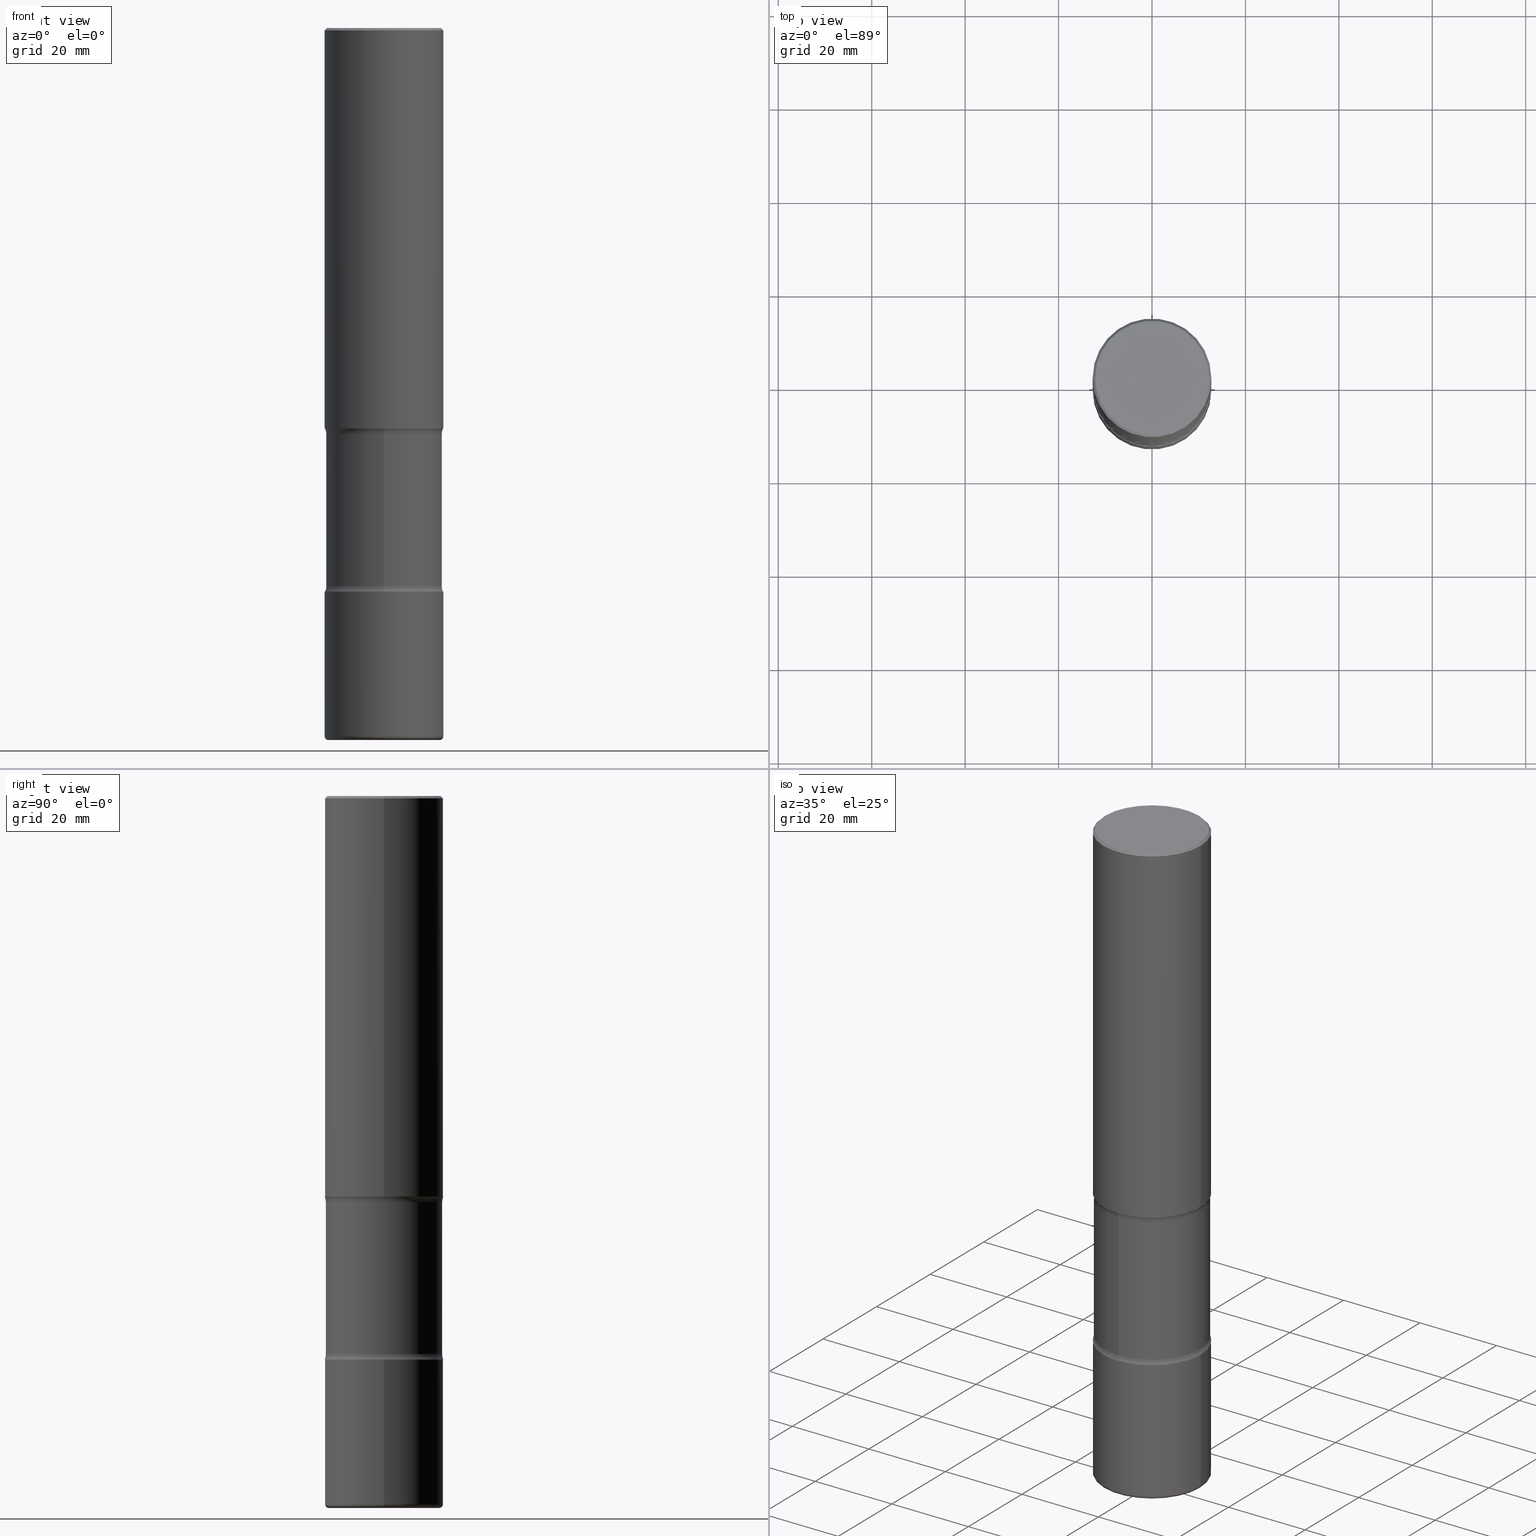
[diagram: canonical four-view strip — front | top / right | iso, engineering-drawing reading convention]
A machine part, canonical four-view strip (front | top / right | iso — engineering-drawing reading convention). The complete STEP part file that produces these views, byte-faithful:
ISO-10303-21;
HEADER;
FILE_DESCRIPTION (( 'STEP AP203' ),
    '1' );
FILE_NAME ('33563.STEP',
    '2024-03-01T22:50:40',
    ( '' ),
    ( '' ),
    'SwSTEP 2.0',
    'SolidWorks 2023',
    '' );
FILE_SCHEMA (( 'CONFIG_CONTROL_DESIGN' ));
ENDSEC;

DATA;
#1 = EDGE_LOOP ( 'NONE', ( #382, #125 ) ) ;
#2 = PERSON ( 'UNSPECIFIED', 'UNSPECIFIED', 'UNSPECIFIED', ('UNSPECIFIED'), ('UNSPECIFIED'), ('UNSPECIFIED') ) ;
#3 = ORIENTED_EDGE ( 'NONE', *, *, #550, .F. ) ;
#4 = DIRECTION ( 'NONE',  ( 1.000000000000000000, -6.982962677686267499E-15, 0.000000000000000000 ) ) ;
#5 = AXIS2_PLACEMENT_3D ( 'NONE', #258, #65, #360 ) ;
#6 = AXIS2_PLACEMENT_3D ( 'NONE', #307, #271, #533 ) ;
#7 = DIRECTION ( 'NONE',  ( 2.598079946832093802E-29, -3.272933499350004525E-15, -1.000000000000000000 ) ) ;
#8 = PERSON_AND_ORGANIZATION_ROLE ( 'creator' ) ;
#9 = EDGE_CURVE ( 'NONE', #421, #285, #500, .T. ) ;
#10 = CARTESIAN_POINT ( 'NONE',  ( 4.890937612370273159E-31, -6.982962677686291609E-17, -0.02000000000000000042 ) ) ;
#11 = DIRECTION ( 'NONE',  ( 1.000000000000000000, -6.982962677686266711E-15, 4.876036955247123238E-29 ) ) ;
#12 = CALENDAR_DATE ( 2024, 1, 3 ) ;
#13 = DIRECTION ( 'NONE',  ( -2.445468806185136877E-29, 3.491481338843145188E-15, 1.000000000000000000 ) ) ;
#14 = CARTESIAN_POINT ( 'NONE',  ( -0.5000000000000005551, 3.421651712066274396E-15, -0.02000000000000000042 ) ) ;
#15 = SECURITY_CLASSIFICATION_LEVEL ( 'unclassified' ) ;
#16 = ORIENTED_EDGE ( 'NONE', *, *, #188, .F. ) ;
#17 = DIRECTION ( 'NONE',  ( 6.982962677686266711E-15, 1.000000000000000000, -3.345119992241953553E-15 ) ) ;
#18 = CARTESIAN_POINT ( 'NONE',  ( 0.4700000000000005840, -2.412613605140612911E-14, -5.969999999999999751 ) ) ;
#19 = DATE_AND_TIME ( #415, #79 ) ;
#20 = CARTESIAN_POINT ( 'NONE',  ( -3.395946508896794322E-15, -0.4900000000000163669, -4.701010205144333653 ) ) ;
#21 = DIRECTION ( 'NONE',  ( 6.982962677686265922E-15, 1.000000000000000000, -3.272933499350004525E-15 ) ) ;
#22 = PERSON_AND_ORGANIZATION ( #2, #74 ) ;
#23 = DIRECTION ( 'NONE',  ( 2.598079946832093802E-29, -3.272933499350004525E-15, -1.000000000000000000 ) ) ;
#24 = DIRECTION ( 'NONE',  ( -2.445468806185136877E-29, 3.491481338843145188E-15, 1.000000000000000000 ) ) ;
#25 = TOROIDAL_SURFACE ( 'NONE', #94, 0.4700000000000005840, 0.03000000000000029379 ) ;
#26 = CARTESIAN_POINT ( 'NONE',  ( -0.4700000000000002509, -1.745038354453973469E-14, -6.000000000000000888 ) ) ;
#27 = AXIS2_PLACEMENT_3D ( 'NONE', #69, #234, #374 ) ;
#28 = ADVANCED_FACE ( 'NONE', ( #301 ), #482, .F. ) ;
#29 = CARTESIAN_POINT ( 'NONE',  ( -4.219206268629376327E-15, -0.6150000000000164224, -4.701010205144333653 ) ) ;
#30 = CARTESIAN_POINT ( 'NONE',  ( 1.148869742576547963E-28, -1.642419601879555421E-14, -4.701010205144335430 ) ) ;
#31 = ORIENTED_EDGE ( 'NONE', *, *, #350, .T. ) ;
#32 = ORIENTED_EDGE ( 'NONE', *, *, #156, .T. ) ;
#33 = PRODUCT_RELATED_PRODUCT_CATEGORY ( 'detail', '', ( #486 ) ) ;
#34 = CIRCLE ( 'NONE', #189, 0.4800000000000005929 ) ;
#35 = AXIS2_PLACEMENT_3D ( 'NONE', #446, #308, #487 ) ;
#36 = EDGE_CURVE ( 'NONE', #287, #381, #34, .T. ) ;
#37 = ORIENTED_EDGE ( 'NONE', *, *, #354, .T. ) ;
#38 = DIRECTION ( 'NONE',  ( 2.598079946832093802E-29, -3.272933499350004525E-15, -1.000000000000000000 ) ) ;
#39 = ORIENTED_EDGE ( 'NONE', *, *, #209, .T. ) ;
#40 = CIRCLE ( 'NONE', #361, 0.5000000000000006661 ) ;
#41 = VECTOR ( 'NONE', #252, 39.37007874015748143 ) ;
#42 = ORIENTED_EDGE ( 'NONE', *, *, #384, .F. ) ;
#43 =( CONVERSION_BASED_UNIT ( 'INCH', #442 ) LENGTH_UNIT ( ) NAMED_UNIT ( #548 ) );
#44 = UNCERTAINTY_MEASURE_WITH_UNIT (LENGTH_MEASURE( 1.000000000000000082E-05 ), #43, 'distance_accuracy_value', 'NONE');
#45 = ORIENTED_EDGE ( 'NONE', *, *, #290, .F. ) ;
#46 = CARTESIAN_POINT ( 'NONE',  ( 1.459944877292526494E-28, -2.084414359289357934E-14, -5.969999999999999751 ) ) ;
#47 = PERSON_AND_ORGANIZATION_ROLE ( 'creator' ) ;
#48 = AXIS2_PLACEMENT_3D ( 'NONE', #251, #246, #435 ) ;
#49 = ORIENTED_EDGE ( 'NONE', *, *, #354, .F. ) ;
#50 = CIRCLE ( 'NONE', #245, 0.03000000000000029379 ) ;
#51 = DIRECTION ( 'NONE',  ( 2.598079946832093802E-29, -3.272933499350004525E-15, -1.000000000000000000 ) ) ;
#52 = FACE_OUTER_BOUND ( 'NONE', #280, .T. ) ;
#53 = PERSON_AND_ORGANIZATION_ROLE ( 'design_supplier' ) ;
#54 = EDGE_CURVE ( 'NONE', #552, #421, #176, .T. ) ;
#55 = DIRECTION ( 'NONE',  ( 6.982962677686265922E-15, 1.000000000000000000, -3.278217592397109946E-15 ) ) ;
#56 = FACE_OUTER_BOUND ( 'NONE', #429, .T. ) ;
#57 = DIRECTION ( 'NONE',  ( -2.445468806185136597E-29, 3.491481338843145583E-15, 1.000000000000000000 ) ) ;
#58 = CARTESIAN_POINT ( 'NONE',  ( 1.459944877292526494E-28, -2.084414359289357934E-14, -5.969999999999999751 ) ) ;
#59 = DATE_TIME_ROLE ( 'creation_date' ) ;
#60 = ORIENTED_EDGE ( 'NONE', *, *, #9, .T. ) ;
#61 = CARTESIAN_POINT ( 'NONE',  ( 3.491481338843219736E-15, 0.4999999999999887867, -3.375000000000002220 ) ) ;
#62 = EDGE_CURVE ( 'NONE', #296, #343, #106, .T. ) ;
#63 = CLOSED_SHELL ( 'NONE', ( #480, #139, #328, #28, #430, #183 ) ) ;
#64 = AXIS2_PLACEMENT_3D ( 'NONE', #46, #211, #169 ) ;
#65 = DIRECTION ( 'NONE',  ( 2.598079946832093802E-29, -3.272933499350004525E-15, -1.000000000000000000 ) ) ;
#66 =( GEOMETRIC_REPRESENTATION_CONTEXT ( 3 ) GLOBAL_UNCERTAINTY_ASSIGNED_CONTEXT ( ( #44 ) ) GLOBAL_UNIT_ASSIGNED_CONTEXT ( ( #43, #261, #243 ) ) REPRESENTATION_CONTEXT ( 'NONE', 'WORKASPACE' ) );
#67 = CARTESIAN_POINT ( 'NONE',  ( -0.5000000000000006661, 3.552713678800505663E-15, -2.459467545127455974E-29 ) ) ;
#68 = FACE_OUTER_BOUND ( 'NONE', #152, .T. ) ;
#69 = CARTESIAN_POINT ( 'NONE',  ( 1.467281283711081958E-28, -2.094888803305887271E-14, -6.000000000000000888 ) ) ;
#70 = EDGE_CURVE ( 'NONE', #166, #256, #347, .T. ) ;
#71 = ORIENTED_EDGE ( 'NONE', *, *, #9, .F. ) ;
#72 = CYLINDRICAL_SURFACE ( 'NONE', #515, 0.4900000000000001021 ) ;
#73 = CIRCLE ( 'NONE', #5, 0.4899999999999999911 ) ;
#74 = ORGANIZATION ( 'UNSPECIFIED', 'UNSPECIFIED', '' ) ;
#75 = EDGE_LOOP ( 'NONE', ( #512, #465 ) ) ;
#76 = APPROVAL ( #358, 'UNSPECIFIED' ) ;
#77 = EDGE_CURVE ( 'NONE', #170, #231, #509, .T. ) ;
#78 = EDGE_LOOP ( 'NONE', ( #31, #108, #120, #355 ) ) ;
#79 = LOCAL_TIME ( 17, 50, 40.00000000000000000, #304 ) ;
#80 = ORIENTED_EDGE ( 'NONE', *, *, #342, .T. ) ;
#81 = DIRECTION ( 'NONE',  ( -2.445468806185136877E-29, 3.491481338843145188E-15, 1.000000000000000000 ) ) ;
#82 = ORIENTED_EDGE ( 'NONE', *, *, #550, .T. ) ;
#83 = ADVANCED_FACE ( 'NONE', ( #52 ), #454, .T. ) ;
#84 = ORIENTED_EDGE ( 'NONE', *, *, #521, .T. ) ;
#85 = TOROIDAL_SURFACE ( 'NONE', #205, 0.6150000000000001021, 0.1250000000000000278 ) ;
#86 =( LENGTH_UNIT ( ) NAMED_UNIT ( * ) SI_UNIT ( $, .METRE. ) );
#87 = DIRECTION ( 'NONE',  ( -2.445468806185136597E-29, 3.491481338843145583E-15, 1.000000000000000000 ) ) ;
#88 = DIRECTION ( 'NONE',  ( -2.445468806185136597E-29, 3.491481338843145583E-15, 1.000000000000000000 ) ) ;
#89 = PERSON_AND_ORGANIZATION ( #2, #74 ) ;
#90 = CARTESIAN_POINT ( 'NONE',  ( 8.043616902485270068E-29, -1.208425279789868613E-14, -3.375000000000000444 ) ) ;
#91 = ADVANCED_FACE ( 'NONE', ( #175 ), #216, .F. ) ;
#92 = DIRECTION ( 'NONE',  ( 2.598079946832093241E-29, -3.272933499350004525E-15, -1.000000000000000000 ) ) ;
#93 = CALENDAR_DATE ( 2024, 1, 3 ) ;
#94 = AXIS2_PLACEMENT_3D ( 'NONE', #58, #414, #483 ) ;
#95 = AXIS2_PLACEMENT_3D ( 'NONE', #269, #179, #142 ) ;
#96 = CARTESIAN_POINT ( 'NONE',  ( -0.4800000000000005929, 3.386736898677843141E-15, 1.280553747027767124E-17 ) ) ;
#97 = CARTESIAN_POINT ( 'NONE',  ( 8.182496310207079794E-29, -1.222798127249435385E-14, -3.423989794855665902 ) ) ;
#98 = COORDINATED_UNIVERSAL_TIME_OFFSET ( 5, 0, .BEHIND. ) ;
#99 = FACE_OUTER_BOUND ( 'NONE', #460, .T. ) ;
#100 = DIRECTION ( 'NONE',  ( 2.445468806185136597E-29, -3.491481338843145583E-15, -1.000000000000000000 ) ) ;
#101 = EDGE_LOOP ( 'NONE', ( #513, #478, #37, #16 ) ) ;
#102 = CARTESIAN_POINT ( 'NONE',  ( -3.430248998885690051E-15, -0.5000000000000129896, -3.374999999999998668 ) ) ;
#103 = LINE ( 'NONE', #14, #203 ) ;
#104 = COORDINATED_UNIVERSAL_TIME_OFFSET ( 5, 0, .BEHIND. ) ;
#105 = CARTESIAN_POINT ( 'NONE',  ( 8.253457220874837135E-29, -1.178374951859561767E-14, -3.375000000000000444 ) ) ;
#106 = CIRCLE ( 'NONE', #114, 0.5000000000000006661 ) ;
#107 = DIRECTION ( 'NONE',  ( -1.000000000000000000, 6.982962677686266711E-15, 0.000000000000000000 ) ) ;
#108 = ORIENTED_EDGE ( 'NONE', *, *, #283, .T. ) ;
#109 = ORIENTED_EDGE ( 'NONE', *, *, #255, .F. ) ;
#110 = APPROVAL ( #279, 'UNSPECIFIED' ) ;
#111 = DIRECTION ( 'NONE',  ( 6.982962677686265922E-15, 1.000000000000000000, -3.278217592397109946E-15 ) ) ;
#112 = ORIENTED_EDGE ( 'NONE', *, *, #255, .T. ) ;
#113 = CARTESIAN_POINT ( 'NONE',  ( 0.5000000000000007772, -2.433562493173672216E-14, -5.969999999999999751 ) ) ;
#114 = AXIS2_PLACEMENT_3D ( 'NONE', #336, #87, #443 ) ;
#115 = AXIS2_PLACEMENT_3D ( 'NONE', #90, #449, #55 ) ;
#116 = VERTEX_POINT ( 'NONE', #357 ) ;
#117 = ADVANCED_FACE ( 'NONE', ( #303 ), #253, .F. ) ;
#118 = CARTESIAN_POINT ( 'NONE',  ( 1.486357676291951651E-28, -2.067570323369244855E-14, -6.000000000000000888 ) ) ;
#119 = APPLICATION_CONTEXT ( 'configuration controlled 3d designs of mechanical parts and assemblies' ) ;
#120 = ORIENTED_EDGE ( 'NONE', *, *, #62, .F. ) ;
#121 = CARTESIAN_POINT ( 'NONE',  ( 4.890937612370273159E-31, -6.982962677686291609E-17, -0.02000000000000000042 ) ) ;
#122 = AXIS2_PLACEMENT_3D ( 'NONE', #18, #489, #524 ) ;
#123 = ADVANCED_FACE ( 'NONE', ( #319 ), #25, .T. ) ;
#124 = ORIENTED_EDGE ( 'NONE', *, *, #366, .T. ) ;
#125 = ORIENTED_EDGE ( 'NONE', *, *, #54, .T. ) ;
#126 = ORIENTED_EDGE ( 'NONE', *, *, #209, .F. ) ;
#127 = DIRECTION ( 'NONE',  ( -6.982962677686265133E-15, -1.000000000000000000, 0.000000000000000000 ) ) ;
#128 = ADVANCED_BREP_SHAPE_REPRESENTATION ( '33563', ( #344, #159, #365, #6 ), #66 ) ;
#129 = AXIS2_PLACEMENT_3D ( 'NONE', #412, #51, #17 ) ;
#130 = EDGE_CURVE ( 'NONE', #381, #287, #424, .T. ) ;
#131 = DIRECTION ( 'NONE',  ( 1.000000000000000000, -6.982962677686267499E-15, 0.000000000000000000 ) ) ;
#132 = CARTESIAN_POINT ( 'NONE',  ( 8.253457220874837135E-29, -1.178374951859561767E-14, -3.375000000000000444 ) ) ;
#133 = DIRECTION ( 'NONE',  ( 1.000000000000000000, -6.982962677686265133E-15, 0.000000000000000000 ) ) ;
#134 = CARTESIAN_POINT ( 'NONE',  ( 4.890937612370273159E-31, -6.982962677686291609E-17, -0.02000000000000000042 ) ) ;
#135 = APPROVAL_STATUS ( 'not_yet_approved' ) ;
#136 = AXIS2_PLACEMENT_3D ( 'NONE', #134, #100, #224 ) ;
#137 = CONICAL_SURFACE ( 'NONE', #266, 0.5000000000000005551, 0.7853981633974460586 ) ;
#138 = DIRECTION ( 'NONE',  ( 2.598079946832093802E-29, -3.272933499350004525E-15, -1.000000000000000000 ) ) ;
#139 = ADVANCED_FACE ( 'NONE', ( #316 ), #237, .T. ) ;
#140 = DIRECTION ( 'NONE',  ( -2.445468806185136597E-29, 3.491481338843145583E-15, 1.000000000000000000 ) ) ;
#141 = SHAPE_DEFINITION_REPRESENTATION ( #494, #128 ) ;
#142 = DIRECTION ( 'NONE',  ( 1.000000000000000000, -6.982962677686267499E-15, 0.000000000000000000 ) ) ;
#143 = DIRECTION ( 'NONE',  ( 1.000000000000000000, -6.982962677686265133E-15, 0.000000000000000000 ) ) ;
#144 = COORDINATED_UNIVERSAL_TIME_OFFSET ( 5, 0, .BEHIND. ) ;
#145 = PLANE ( 'NONE',  #197 ) ;
#146 = PLANE ( 'NONE',  #27 ) ;
#147 = ORIENTED_EDGE ( 'NONE', *, *, #384, .T. ) ;
#148 = AXIS2_PLACEMENT_3D ( 'NONE', #341, #250, #436 ) ;
#149 = AXIS2_PLACEMENT_3D ( 'NONE', #370, #508, #543 ) ;
#150 = PLANE ( 'NONE',  #149 ) ;
#151 = CARTESIAN_POINT ( 'NONE',  ( 0.000000000000000000, 0.000000000000000000, 0.000000000000000000 ) ) ;
#152 = EDGE_LOOP ( 'NONE', ( #192, #124, #276, #109 ) ) ;
#153 = DIRECTION ( 'NONE',  ( -1.000000000000000000, 7.105427357600986081E-15, 0.000000000000000000 ) ) ;
#154 = ORIENTED_EDGE ( 'NONE', *, *, #452, .T. ) ;
#155 = CIRCLE ( 'NONE', #531, 0.5000000000000005551 ) ;
#156 = EDGE_CURVE ( 'NONE', #381, #166, #103, .T. ) ;
#157 = CARTESIAN_POINT ( 'NONE',  ( 1.161597682937940108E-28, -1.658453635950494339E-14, -4.750000000000000000 ) ) ;
#158 = ADVANCED_FACE ( 'NONE', ( #408 ), #388, .F. ) ;
#159 = MANIFOLD_SOLID_BREP ( 'Body-Move/Copy2[2]', #63 ) ;
#160 = AXIS2_PLACEMENT_3D ( 'NONE', #398, #523, #11 ) ;
#161 = EDGE_LOOP ( 'NONE', ( #416, #154, #511, #126 ) ) ;
#162 = CIRCLE ( 'NONE', #64, 0.5000000000000006661 ) ;
#163 = ORIENTED_EDGE ( 'NONE', *, *, #130, .F. ) ;
#164 = DIRECTION ( 'NONE',  ( 6.860497997771532351E-15, 1.000000000000000000, 0.000000000000000000 ) ) ;
#165 = EDGE_CURVE ( 'NONE', #473, #296, #438, .T. ) ;
#166 = VERTEX_POINT ( 'NONE', #458 ) ;
#167 = CARTESIAN_POINT ( 'NONE',  ( 8.170896306099193759E-29, -1.224459313860807689E-14, -3.423989794855665902 ) ) ;
#168 = AXIS2_PLACEMENT_3D ( 'NONE', #463, #202, #164 ) ;
#169 = DIRECTION ( 'NONE',  ( 1.000000000000000000, -6.982962677686269077E-15, 0.000000000000000000 ) ) ;
#170 = VERTEX_POINT ( 'NONE', #180 ) ;
#171 = CYLINDRICAL_SURFACE ( 'NONE', #302, 0.5000000000000006661 ) ;
#172 = CALENDAR_DATE ( 2024, 1, 3 ) ;
#173 = VERTEX_POINT ( 'NONE', #367 ) ;
#174 = LINE ( 'NONE', #215, #425 ) ;
#175 = FACE_OUTER_BOUND ( 'NONE', #1, .T. ) ;
#176 = CIRCLE ( 'NONE', #212, 0.5000000000000006661 ) ;
#177 = ORIENTED_EDGE ( 'NONE', *, *, #156, .F. ) ;
#178 = AXIS2_PLACEMENT_3D ( 'NONE', #30, #426, #327 ) ;
#179 = DIRECTION ( 'NONE',  ( -2.445468806185136597E-29, 3.491481338843145583E-15, 1.000000000000000000 ) ) ;
#180 = CARTESIAN_POINT ( 'NONE',  ( -3.395946508896831399E-15, -0.4900000000000125366, -3.423989794855664126 ) ) ;
#181 = PERSON_AND_ORGANIZATION ( #2, #74 ) ;
#182 = CARTESIAN_POINT ( 'NONE',  ( 4.294522046777136226E-15, 0.6149999999999878897, -3.423989794855668123 ) ) ;
#183 = ADVANCED_FACE ( 'NONE', ( #536 ), #171, .T. ) ;
#184 = FACE_OUTER_BOUND ( 'NONE', #491, .T. ) ;
#185 = APPROVAL_ROLE ( '' ) ;
#186 = CARTESIAN_POINT ( 'NONE',  ( 8.253457220874837135E-29, -1.178374951859561767E-14, -3.375000000000000444 ) ) ;
#187 = FACE_OUTER_BOUND ( 'NONE', #363, .T. ) ;
#188 = EDGE_CURVE ( 'NONE', #331, #285, #73, .T. ) ;
#189 = AXIS2_PLACEMENT_3D ( 'NONE', #201, #556, #210 ) ;
#190 = CIRCLE ( 'NONE', #95, 0.4700000000000002509 ) ;
#191 = DIRECTION ( 'NONE',  ( 2.598079946832093802E-29, -3.272933499350004525E-15, -1.000000000000000000 ) ) ;
#192 = ORIENTED_EDGE ( 'NONE', *, *, #62, .T. ) ;
#193 = CARTESIAN_POINT ( 'NONE',  ( 0.5000000000000005551, -3.500078625662632235E-15, -0.02000000000000000042 ) ) ;
#194 = ORIENTED_EDGE ( 'NONE', *, *, #275, .F. ) ;
#195 = EDGE_CURVE ( 'NONE', #222, #242, #439, .T. ) ;
#196 = ORIENTED_EDGE ( 'NONE', *, *, #503, .T. ) ;
#197 = AXIS2_PLACEMENT_3D ( 'NONE', #186, #496, #529 ) ;
#198 = APPLICATION_CONTEXT ( 'configuration controlled 3d designs of mechanical parts and assemblies' ) ;
#199 = CC_DESIGN_DATE_AND_TIME_ASSIGNMENT ( #259, #403, ( #362 ) ) ;
#200 = ORIENTED_EDGE ( 'NONE', *, *, #476, .T. ) ;
#201 = CARTESIAN_POINT ( 'NONE',  ( -3.131554243005659264E-46, 4.471029511141341874E-32, 1.280553747030123384E-17 ) ) ;
#202 = DIRECTION ( 'NONE',  ( 1.000000000000000000, -6.860497997771530774E-15, 4.843475318745101421E-29 ) ) ;
#203 = VECTOR ( 'NONE', #405, 39.37007874015748143 ) ;
#204 = ORIENTED_EDGE ( 'NONE', *, *, #195, .T. ) ;
#205 = AXIS2_PLACEMENT_3D ( 'NONE', #534, #23, #227 ) ;
#206 = CC_DESIGN_DATE_AND_TIME_ASSIGNMENT ( #19, #59, ( #418 ) ) ;
#207 = CARTESIAN_POINT ( 'NONE',  ( -3.430248998885653369E-15, -0.5000000000000172085, -4.749999999999999112 ) ) ;
#208 = EDGE_LOOP ( 'NONE', ( #406, #477 ) ) ;
#209 = EDGE_CURVE ( 'NONE', #343, #296, #162, .T. ) ;
#210 = DIRECTION ( 'NONE',  ( 1.000000000000000000, -6.982962677686266711E-15, 4.876036955247123238E-29 ) ) ;
#211 = DIRECTION ( 'NONE',  ( -2.445468806185136597E-29, 3.491481338843145583E-15, 1.000000000000000000 ) ) ;
#212 = AXIS2_PLACEMENT_3D ( 'NONE', #157, #517, #437 ) ;
#213 = CIRCLE ( 'NONE', #129, 0.4900000000000002132 ) ;
#214 = CC_DESIGN_APPROVAL ( #110, ( #362 ) ) ;
#215 = CARTESIAN_POINT ( 'NONE',  ( 3.421651712066419546E-15, 0.4899999999999793965, -6.000000000000001776 ) ) ;
#216 = PLANE ( 'NONE',  #265 ) ;
#217 = PERSON_AND_ORGANIZATION ( #2, #74 ) ;
#218 = CC_DESIGN_PERSON_AND_ORGANIZATION_ASSIGNMENT ( #181, #368, ( #486 ) ) ;
#219 = ADVANCED_FACE ( 'NONE', ( #532 ), #352, .F. ) ;
#220 = EDGE_LOOP ( 'NONE', ( #322, #80, #538, #346 ) ) ;
#221 = CARTESIAN_POINT ( 'NONE',  ( -0.5000000000000006661, 3.552713678800505663E-15, -2.459467545127455974E-29 ) ) ;
#222 = VERTEX_POINT ( 'NONE', #450 ) ;
#223 = DIRECTION ( 'NONE',  ( 1.000000000000000000, -6.982962677686266711E-15, 4.876176775795935793E-29 ) ) ;
#224 = DIRECTION ( 'NONE',  ( -1.000000000000000000, 6.982962677686266711E-15, 0.000000000000000000 ) ) ;
#225 = DATE_AND_TIME ( #172, #334 ) ;
#226 = AXIS2_PLACEMENT_3D ( 'NONE', #29, #377, #413 ) ;
#227 = DIRECTION ( 'NONE',  ( 6.982962677686265922E-15, 1.000000000000000000, -3.272933499350004525E-15 ) ) ;
#228 = CIRCLE ( 'NONE', #247, 0.5000000000000007772 ) ;
#229 = CARTESIAN_POINT ( 'NONE',  ( 1.161597682937940108E-28, -1.658453635950494339E-14, -4.750000000000000000 ) ) ;
#230 = PERSON_AND_ORGANIZATION ( #2, #74 ) ;
#231 = VERTEX_POINT ( 'NONE', #447 ) ;
#232 = DIRECTION ( 'NONE',  ( -2.445468806185136597E-29, 3.491481338843145583E-15, 1.000000000000000000 ) ) ;
#233 = ADVANCED_FACE ( 'NONE', ( #56 ), #146, .T. ) ;
#234 = DIRECTION ( 'NONE',  ( 2.438088387897960049E-29, -3.491481338843145188E-15, -1.000000000000000000 ) ) ;
#235 = ORIENTED_EDGE ( 'NONE', *, *, #557, .T. ) ;
#236 = DIRECTION ( 'NONE',  ( 2.598079946832093802E-29, -3.272933499350004525E-15, -1.000000000000000000 ) ) ;
#237 = CONICAL_SURFACE ( 'NONE', #136, 0.5000000000000005551, 0.7853981633974460586 ) ;
#238 = CIRCLE ( 'NONE', #559, 0.5000000000000008882 ) ;
#239 = APPROVAL_PERSON_ORGANIZATION ( #217, #315, #490 ) ;
#240 = CARTESIAN_POINT ( 'NONE',  ( 0.5000000000000006661, -3.491481338843138088E-15, 2.438088387897971260E-29 ) ) ;
#241 = ADVANCED_FACE ( 'NONE', ( #378 ), #72, .T. ) ;
#242 = VERTEX_POINT ( 'NONE', #422 ) ;
#243 =( NAMED_UNIT ( * ) SI_UNIT ( $, .STERADIAN. ) SOLID_ANGLE_UNIT ( ) );
#244 = ORIENTED_EDGE ( 'NONE', *, *, #350, .F. ) ;
#245 = AXIS2_PLACEMENT_3D ( 'NONE', #540, #286, #153 ) ;
#246 = DIRECTION ( 'NONE',  ( 2.438088387897960049E-29, -3.491481338843145188E-15, -1.000000000000000000 ) ) ;
#247 = AXIS2_PLACEMENT_3D ( 'NONE', #300, #444, #4 ) ;
#248 = DIRECTION ( 'NONE',  ( 1.000000000000000000, -6.982962677686266711E-15, 0.000000000000000000 ) ) ;
#249 = EDGE_LOOP ( 'NONE', ( #448, #194 ) ) ;
#250 = DIRECTION ( 'NONE',  ( -2.445468806185136597E-29, 3.491481338843145583E-15, 1.000000000000000000 ) ) ;
#251 = CARTESIAN_POINT ( 'NONE',  ( 3.351822085289412281E-15, 0.4800000000000005929, -1.669508273909561417E-15 ) ) ;
#252 = DIRECTION ( 'NONE',  ( 0.7071067811865459074, -7.319954787623249734E-15, -0.7071067811865491270 ) ) ;
#253 = TOROIDAL_SURFACE ( 'NONE', #311, 0.6150000000000001021, 0.1249999999999999584 ) ;
#254 = CARTESIAN_POINT ( 'NONE',  ( 4.294522046777168570E-15, 0.6149999999999836708, -4.701010205144338094 ) ) ;
#255 = EDGE_CURVE ( 'NONE', #296, #242, #551, .T. ) ;
#256 = VERTEX_POINT ( 'NONE', #193 ) ;
#257 = CARTESIAN_POINT ( 'NONE',  ( 0.5000000000000006661, -3.491481338843138088E-15, 2.438088387897971260E-29 ) ) ;
#258 = CARTESIAN_POINT ( 'NONE',  ( 1.148869742576547963E-28, -1.642419601879555421E-14, -4.701010205144335430 ) ) ;
#259 = DATE_AND_TIME ( #12, #391 ) ;
#260 = LINE ( 'NONE', #67, #469 ) ;
#261 =( NAMED_UNIT ( * ) PLANE_ANGLE_UNIT ( ) SI_UNIT ( $, .RADIAN. ) );
#262 = ADVANCED_FACE ( 'NONE', ( #187 ), #150, .F. ) ;
#263 = EDGE_CURVE ( 'NONE', #285, #331, #338, .T. ) ;
#264 = DIRECTION ( 'NONE',  ( 6.982962677686265922E-15, 1.000000000000000000, -3.272933499350004525E-15 ) ) ;
#265 = AXIS2_PLACEMENT_3D ( 'NONE', #402, #348, #306 ) ;
#266 = AXIS2_PLACEMENT_3D ( 'NONE', #324, #499, #107 ) ;
#267 = PRODUCT_DEFINITION_FORMATION_WITH_SPECIFIED_SOURCE ( 'ANY', '', #486, .NOT_KNOWN. ) ;
#268 = ORIENTED_EDGE ( 'NONE', *, *, #70, .F. ) ;
#269 = CARTESIAN_POINT ( 'NONE',  ( 1.467281283711081958E-28, -2.094888803305887271E-14, -6.000000000000000888 ) ) ;
#270 = CARTESIAN_POINT ( 'NONE',  ( 0.000000000000000000, 0.000000000000000000, 0.000000000000000000 ) ) ;
#271 = DIRECTION ( 'NONE',  ( 0.000000000000000000, 0.000000000000000000, 1.000000000000000000 ) ) ;
#272 = CARTESIAN_POINT ( 'NONE',  ( 0.4700000000000002509, -2.423088049157142248E-14, -6.000000000000000888 ) ) ;
#273 = DIRECTION ( 'NONE',  ( 1.000000000000000000, -6.982962677686266711E-15, 4.876176775795935793E-29 ) ) ;
#274 = DATE_AND_TIME ( #93, #313 ) ;
#275 = EDGE_CURVE ( 'NONE', #479, #386, #238, .T. ) ;
#276 = ORIENTED_EDGE ( 'NONE', *, *, #461, .F. ) ;
#277 = FACE_OUTER_BOUND ( 'NONE', #220, .T. ) ;
#278 = DIRECTION ( 'NONE',  ( 2.598079946832093802E-29, -3.272933499350004525E-15, -1.000000000000000000 ) ) ;
#279 = APPROVAL_STATUS ( 'not_yet_approved' ) ;
#280 = EDGE_LOOP ( 'NONE', ( #298, #39, #112, #427 ) ) ;
#281 = TOROIDAL_SURFACE ( 'NONE', #35, 0.6150000000000001021, 0.1250000000000000278 ) ;
#282 = DIRECTION ( 'NONE',  ( 1.000000000000000000, -6.982962677686267499E-15, 0.000000000000000000 ) ) ;
#283 = EDGE_CURVE ( 'NONE', #299, #343, #50, .T. ) ;
#284 = DIRECTION ( 'NONE',  ( 6.982962677686266711E-15, 1.000000000000000000, -2.230079994827969693E-15 ) ) ;
#285 = VERTEX_POINT ( 'NONE', #464 ) ;
#286 = DIRECTION ( 'NONE',  ( 7.105427357601001859E-15, 1.000000000000000000, -3.491481338843145583E-15 ) ) ;
#287 = VERTEX_POINT ( 'NONE', #467 ) ;
#288 = CC_DESIGN_PERSON_AND_ORGANIZATION_ASSIGNMENT ( #320, #47, ( #267 ) ) ;
#289 = DIRECTION ( 'NONE',  ( 6.982962677686265922E-15, 1.000000000000000000, -3.278217592397111523E-15 ) ) ;
#290 = EDGE_CURVE ( 'NONE', #421, #552, #390, .T. ) ;
#291 = AXIS2_PLACEMENT_3D ( 'NONE', #323, #526, #131 ) ;
#292 = EDGE_LOOP ( 'NONE', ( #340, #42, #372, #200 ) ) ;
#293 = EDGE_LOOP ( 'NONE', ( #505, #196, #507, #71 ) ) ;
#294 = AXIS2_PLACEMENT_3D ( 'NONE', #229, #445, #143 ) ;
#295 = APPROVAL_PERSON_ORGANIZATION ( #317, #110, #185 ) ;
#296 = VERTEX_POINT ( 'NONE', #113 ) ;
#297 = LINE ( 'NONE', #257, #501 ) ;
#298 = ORIENTED_EDGE ( 'NONE', *, *, #366, .F. ) ;
#299 = VERTEX_POINT ( 'NONE', #26 ) ;
#300 = CARTESIAN_POINT ( 'NONE',  ( 8.253457220874837135E-29, -1.178374951859561767E-14, -3.375000000000000444 ) ) ;
#301 = FACE_OUTER_BOUND ( 'NONE', #75, .T. ) ;
#302 = AXIS2_PLACEMENT_3D ( 'NONE', #270, #88, #484 ) ;
#303 = FACE_OUTER_BOUND ( 'NONE', #292, .T. ) ;
#304 = COORDINATED_UNIVERSAL_TIME_OFFSET ( 5, 0, .BEHIND. ) ;
#305 = CARTESIAN_POINT ( 'NONE',  ( 1.161597682937940108E-28, -1.658453635950494339E-14, -4.750000000000000000 ) ) ;
#306 = DIRECTION ( 'NONE',  ( -6.982962677686265922E-15, -1.000000000000000000, 3.272933499350004525E-15 ) ) ;
#307 = CARTESIAN_POINT ( 'NONE',  ( 0.000000000000000000, 0.000000000000000000, 0.000000000000000000 ) ) ;
#308 = DIRECTION ( 'NONE',  ( 2.598079946832093802E-29, -3.272933499350004525E-15, -1.000000000000000000 ) ) ;
#309 = CARTESIAN_POINT ( 'NONE',  ( 0.000000000000000000, 0.000000000000000000, 0.000000000000000000 ) ) ;
#310 = COORDINATED_UNIVERSAL_TIME_OFFSET ( 5, 0, .BEHIND. ) ;
#311 = AXIS2_PLACEMENT_3D ( 'NONE', #493, #7, #527 ) ;
#312 = VECTOR ( 'NONE', #191, 39.37007874015748143 ) ;
#313 = LOCAL_TIME ( 17, 50, 40.00000000000000000, #310 ) ;
#314 = FACE_OUTER_BOUND ( 'NONE', #293, .T. ) ;
#315 = APPROVAL ( #135, 'UNSPECIFIED' ) ;
#316 = FACE_OUTER_BOUND ( 'NONE', #472, .T. ) ;
#317 = PERSON_AND_ORGANIZATION ( #2, #74 ) ;
#318 = DIRECTION ( 'NONE',  ( 1.000000000000000000, -6.982962677686266711E-15, 0.000000000000000000 ) ) ;
#319 = FACE_OUTER_BOUND ( 'NONE', #78, .T. ) ;
#320 = PERSON_AND_ORGANIZATION ( #2, #74 ) ;
#321 = EDGE_CURVE ( 'NONE', #170, #331, #380, .T. ) ;
#322 = ORIENTED_EDGE ( 'NONE', *, *, #335, .T. ) ;
#323 = CARTESIAN_POINT ( 'NONE',  ( 1.467281283711081958E-28, -2.094888803305887271E-14, -6.000000000000000888 ) ) ;
#324 = CARTESIAN_POINT ( 'NONE',  ( 4.890937612370273159E-31, -6.982962677686291609E-17, -0.02000000000000000042 ) ) ;
#325 = EDGE_LOOP ( 'NONE', ( #520, #235, #84, #268 ) ) ;
#326 = AXIS2_PLACEMENT_3D ( 'NONE', #492, #57, #223 ) ;
#327 = DIRECTION ( 'NONE',  ( 6.982962677686265922E-15, 1.000000000000000000, -3.345119992241955130E-15 ) ) ;
#328 = ADVANCED_FACE ( 'NONE', ( #184 ), #137, .T. ) ;
#329 = ADVANCED_FACE ( 'NONE', ( #68 ), #547, .T. ) ;
#330 = CARTESIAN_POINT ( 'NONE',  ( 8.043616902485270068E-29, -1.208425279789868613E-14, -3.375000000000000444 ) ) ;
#331 = VERTEX_POINT ( 'NONE', #20 ) ;
#332 = CARTESIAN_POINT ( 'NONE',  ( -3.361644018907902538E-15, -0.4900000000000208078, -5.999999999999999112 ) ) ;
#333 = AXIS2_PLACEMENT_3D ( 'NONE', #105, #417, #282 ) ;
#334 = LOCAL_TIME ( 17, 50, 40.00000000000000000, #144 ) ;
#335 = EDGE_CURVE ( 'NONE', #173, #116, #510, .T. ) ;
#336 = CARTESIAN_POINT ( 'NONE',  ( 1.459944877292526494E-28, -2.084414359289357934E-14, -5.969999999999999751 ) ) ;
#337 = CLOSED_SHELL ( 'NONE', ( #329, #123, #233, #542, #83, #262 ) ) ;
#338 = CIRCLE ( 'NONE', #178, 0.4899999999999999911 ) ;
#339 = CC_DESIGN_APPROVAL ( #315, ( #267 ) ) ;
#340 = ORIENTED_EDGE ( 'NONE', *, *, #518, .F. ) ;
#341 = CARTESIAN_POINT ( 'NONE',  ( 1.459944877292526494E-28, -2.084414359289357934E-14, -5.969999999999999751 ) ) ;
#342 = EDGE_CURVE ( 'NONE', #116, #166, #539, .T. ) ;
#343 = VERTEX_POINT ( 'NONE', #462 ) ;
#344 = MANIFOLD_SOLID_BREP ( 'Body-Move/Copy2[1]', #337 ) ;
#345 = FACE_OUTER_BOUND ( 'NONE', #161, .T. ) ;
#346 = ORIENTED_EDGE ( 'NONE', *, *, #521, .F. ) ;
#347 = CIRCLE ( 'NONE', #514, 0.5000000000000005551 ) ;
#348 = DIRECTION ( 'NONE',  ( -2.598079946832093241E-29, 3.272933499350004525E-15, 1.000000000000000000 ) ) ;
#349 = CIRCLE ( 'NONE', #115, 0.5000000000000008882 ) ;
#350 = EDGE_CURVE ( 'NONE', #473, #299, #190, .T. ) ;
#351 = CC_DESIGN_SECURITY_CLASSIFICATION ( #362, ( #267 ) ) ;
#352 = PLANE ( 'NONE',  #411 ) ;
#353 = APPROVAL_DATE_TIME ( #274, #76 ) ;
#354 = EDGE_CURVE ( 'NONE', #231, #285, #174, .T. ) ;
#355 = ORIENTED_EDGE ( 'NONE', *, *, #165, .F. ) ;
#356 = FACE_OUTER_BOUND ( 'NONE', #208, .T. ) ;
#357 = CARTESIAN_POINT ( 'NONE',  ( -0.5000000000000007772, -2.374075893885732456E-15, -3.375000000000000444 ) ) ;
#358 = APPROVAL_STATUS ( 'not_yet_approved' ) ;
#359 = CARTESIAN_POINT ( 'NONE',  ( 3.491481338843253657E-15, 0.4999999999999840128, -4.750000000000001776 ) ) ;
#360 = DIRECTION ( 'NONE',  ( 6.982962677686265922E-15, 1.000000000000000000, -3.345119992241955130E-15 ) ) ;
#361 = AXIS2_PLACEMENT_3D ( 'NONE', #305, #498, #133 ) ;
#362 = SECURITY_CLASSIFICATION ( '', '', #15 ) ;
#363 = EDGE_LOOP ( 'NONE', ( #434, #204 ) ) ;
#364 = DIRECTION ( 'NONE',  ( -6.982962677686265133E-15, -1.000000000000000000, 0.000000000000000000 ) ) ;
#365 = MANIFOLD_SOLID_BREP ( 'Body-Move/Copy2[4]', #410 ) ;
#366 = EDGE_CURVE ( 'NONE', #343, #222, #260, .T. ) ;
#367 = CARTESIAN_POINT ( 'NONE',  ( 0.5000000000000007772, -1.527523085743875734E-14, -3.375000000000000444 ) ) ;
#368 = PERSON_AND_ORGANIZATION_ROLE ( 'design_owner' ) ;
#369 = DIRECTION ( 'NONE',  ( -2.445468806185136597E-29, 3.491481338843145583E-15, 1.000000000000000000 ) ) ;
#370 = CARTESIAN_POINT ( 'NONE',  ( 1.161597682937940108E-28, -1.658453635950494339E-14, -4.750000000000000000 ) ) ;
#371 = DATE_AND_TIME ( #525, #470 ) ;
#372 = ORIENTED_EDGE ( 'NONE', *, *, #387, .T. ) ;
#373 = DIRECTION ( 'NONE',  ( 1.000000000000000000, -6.982962677686266711E-15, 4.876176775795935793E-29 ) ) ;
#374 = DIRECTION ( 'NONE',  ( -1.000000000000000000, 6.982962677686265922E-15, -4.876176775795935793E-29 ) ) ;
#375 = AXIS2_PLACEMENT_3D ( 'NONE', #309, #140, #273 ) ;
#376 = AXIS2_PLACEMENT_3D ( 'NONE', #151, #232, #373 ) ;
#377 = DIRECTION ( 'NONE',  ( 1.000000000000000000, -6.860497997771530774E-15, 4.843475318745101421E-29 ) ) ;
#378 = FACE_OUTER_BOUND ( 'NONE', #502, .T. ) ;
#379 = ORIENTED_EDGE ( 'NONE', *, *, #77, .F. ) ;
#380 = LINE ( 'NONE', #332, #312 ) ;
#381 = VERTEX_POINT ( 'NONE', #96 ) ;
#382 = ORIENTED_EDGE ( 'NONE', *, *, #290, .T. ) ;
#383 = VECTOR ( 'NONE', #453, 39.37007874015748143 ) ;
#384 = EDGE_CURVE ( 'NONE', #231, #170, #213, .T. ) ;
#385 = DIRECTION ( 'NONE',  ( -1.000000000000000000, 6.982962677686265922E-15, -4.883557194083112340E-29 ) ) ;
#386 = VERTEX_POINT ( 'NONE', #61 ) ;
#387 = EDGE_CURVE ( 'NONE', #231, #386, #545, .T. ) ;
#388 = TOROIDAL_SURFACE ( 'NONE', #530, 0.6150000000000001021, 0.1249999999999999584 ) ;
#389 = LINE ( 'NONE', #396, #41 ) ;
#390 = CIRCLE ( 'NONE', #474, 0.5000000000000006661 ) ;
#391 = LOCAL_TIME ( 17, 50, 40.00000000000000000, #104 ) ;
#392 = ORIENTED_EDGE ( 'NONE', *, *, #275, .T. ) ;
#393 = ORIENTED_EDGE ( 'NONE', *, *, #503, .F. ) ;
#394 = ADVANCED_FACE ( 'NONE', ( #99 ), #85, .F. ) ;
#395 = DIRECTION ( 'NONE',  ( -2.445468806185136597E-29, 3.491481338843145583E-15, 1.000000000000000000 ) ) ;
#396 = CARTESIAN_POINT ( 'NONE',  ( 0.5000000000000005551, -3.500078625662632235E-15, -0.02000000000000000042 ) ) ;
#397 = AXIS2_PLACEMENT_3D ( 'NONE', #254, #385, #127 ) ;
#398 = CARTESIAN_POINT ( 'NONE',  ( -3.131554243005659264E-46, 4.471029511141341874E-32, 1.280553747030123384E-17 ) ) ;
#399 = VECTOR ( 'NONE', #24, 39.37007874015748143 ) ;
#400 = EDGE_CURVE ( 'NONE', #256, #166, #155, .T. ) ;
#401 = DIRECTION ( 'NONE',  ( -1.000000000000000000, 6.982962677686265922E-15, -4.883557194083112340E-29 ) ) ;
#402 = CARTESIAN_POINT ( 'NONE',  ( 1.161597682937940108E-28, -1.658453635950494339E-14, -4.750000000000000000 ) ) ;
#403 = DATE_TIME_ROLE ( 'classification_date' ) ;
#404 = CYLINDRICAL_SURFACE ( 'NONE', #326, 0.5000000000000006661 ) ;
#405 = DIRECTION ( 'NONE',  ( -0.7071067811865459074, 2.468850131082240100E-15, -0.7071067811865491270 ) ) ;
#406 = ORIENTED_EDGE ( 'NONE', *, *, #335, .F. ) ;
#407 = CYLINDRICAL_SURFACE ( 'NONE', #433, 0.4900000000000001021 ) ;
#408 = FACE_OUTER_BOUND ( 'NONE', #555, .T. ) ;
#409 = MECHANICAL_CONTEXT ( 'NONE', #119, 'mechanical' ) ;
#410 = CLOSED_SHELL ( 'NONE', ( #241, #471, #158, #117, #219, #91, #394, #488 ) ) ;
#411 = AXIS2_PLACEMENT_3D ( 'NONE', #132, #92, #264 ) ;
#412 = CARTESIAN_POINT ( 'NONE',  ( 8.170896306099193759E-29, -1.224459313860807689E-14, -3.423989794855665902 ) ) ;
#413 = DIRECTION ( 'NONE',  ( 6.860497997771532351E-15, 1.000000000000000000, 0.000000000000000000 ) ) ;
#414 = DIRECTION ( 'NONE',  ( -2.445468806185136597E-29, 3.491481338843145583E-15, 1.000000000000000000 ) ) ;
#415 = CALENDAR_DATE ( 2024, 1, 3 ) ;
#416 = ORIENTED_EDGE ( 'NONE', *, *, #283, .F. ) ;
#417 = DIRECTION ( 'NONE',  ( -2.445468806185136597E-29, 3.491481338843145583E-15, 1.000000000000000000 ) ) ;
#418 = PRODUCT_DEFINITION ( 'UNKNOWN', '', #267, #544 ) ;
#419 = DIRECTION ( 'NONE',  ( 2.598079946832093802E-29, -3.272933499350004525E-15, -1.000000000000000000 ) ) ;
#420 = ORIENTED_EDGE ( 'NONE', *, *, #387, .F. ) ;
#421 = VERTEX_POINT ( 'NONE', #359 ) ;
#422 = CARTESIAN_POINT ( 'NONE',  ( 0.5000000000000006661, -2.007601769834807990E-14, -4.750000000000000000 ) ) ;
#423 = ORIENTED_EDGE ( 'NONE', *, *, #321, .T. ) ;
#424 = CIRCLE ( 'NONE', #160, 0.4800000000000005929 ) ;
#425 = VECTOR ( 'NONE', #138, 39.37007874015748143 ) ;
#426 = DIRECTION ( 'NONE',  ( 2.598079946832093802E-29, -3.272933499350004525E-15, -1.000000000000000000 ) ) ;
#427 = ORIENTED_EDGE ( 'NONE', *, *, #195, .F. ) ;
#428 = DIRECTION ( 'NONE',  ( 2.598079946832093802E-29, -3.272933499350004525E-15, -1.000000000000000000 ) ) ;
#429 = EDGE_LOOP ( 'NONE', ( #244, #495 ) ) ;
#430 = ADVANCED_FACE ( 'NONE', ( #356 ), #145, .F. ) ;
#431 = AXIS2_PLACEMENT_3D ( 'NONE', #167, #38, #558 ) ;
#432 = DIRECTION ( 'NONE',  ( 6.982962677686266711E-15, 1.000000000000000000, -2.230079994827969693E-15 ) ) ;
#433 = AXIS2_PLACEMENT_3D ( 'NONE', #118, #428, #432 ) ;
#434 = ORIENTED_EDGE ( 'NONE', *, *, #461, .T. ) ;
#435 = DIRECTION ( 'NONE',  ( -1.000000000000000000, 6.982962677686265922E-15, -4.876176775795935793E-29 ) ) ;
#436 = DIRECTION ( 'NONE',  ( 1.000000000000000000, -6.982962677686265922E-15, 4.883557194083112901E-29 ) ) ;
#437 = DIRECTION ( 'NONE',  ( 6.982962677686265922E-15, 1.000000000000000000, -3.278217592397111523E-15 ) ) ;
#438 = CIRCLE ( 'NONE', #122, 0.03000000000000029379 ) ;
#439 = CIRCLE ( 'NONE', #294, 0.5000000000000006661 ) ;
#440 = ORIENTED_EDGE ( 'NONE', *, *, #36, .F. ) ;
#441 = CC_DESIGN_PERSON_AND_ORGANIZATION_ASSIGNMENT ( #22, #497, ( #362 ) ) ;
#442 = LENGTH_MEASURE_WITH_UNIT ( LENGTH_MEASURE( 0.02539999999999999897 ), #86 );
#443 = DIRECTION ( 'NONE',  ( 1.000000000000000000, -6.982962677686269077E-15, 0.000000000000000000 ) ) ;
#444 = DIRECTION ( 'NONE',  ( -2.445468806185136597E-29, 3.491481338843145583E-15, 1.000000000000000000 ) ) ;
#445 = DIRECTION ( 'NONE',  ( -2.445468806185136597E-29, 3.491481338843145583E-15, 1.000000000000000000 ) ) ;
#446 = CARTESIAN_POINT ( 'NONE',  ( 1.149617381423846373E-28, -1.641348940497263768E-14, -4.701010205144335430 ) ) ;
#447 = CARTESIAN_POINT ( 'NONE',  ( 3.421651712066353676E-15, 0.4899999999999880007, -3.423989794855667679 ) ) ;
#448 = ORIENTED_EDGE ( 'NONE', *, *, #476, .F. ) ;
#449 = DIRECTION ( 'NONE',  ( 2.598079946832093802E-29, -3.272933499350004525E-15, -1.000000000000000000 ) ) ;
#450 = CARTESIAN_POINT ( 'NONE',  ( -0.5000000000000006661, -1.516162629739875255E-14, -4.750000000000000000 ) ) ;
#451 = APPROVAL_DATE_TIME ( #371, #110 ) ;
#452 = EDGE_CURVE ( 'NONE', #299, #473, #522, .T. ) ;
#453 = DIRECTION ( 'NONE',  ( -2.445468806185136877E-29, 3.491481338843145188E-15, 1.000000000000000000 ) ) ;
#454 = CYLINDRICAL_SURFACE ( 'NONE', #375, 0.5000000000000006661 ) ;
#455 = APPLICATION_PROTOCOL_DEFINITION ( 'international standard', 'config_control_design', 1994, #198 ) ;
#456 = ORIENTED_EDGE ( 'NONE', *, *, #518, .T. ) ;
#457 = FACE_OUTER_BOUND ( 'NONE', #101, .T. ) ;
#458 = CARTESIAN_POINT ( 'NONE',  ( -0.5000000000000005551, 3.421651712066274396E-15, -0.02000000000000000042 ) ) ;
#459 = AXIS2_PLACEMENT_3D ( 'NONE', #182, #401, #364 ) ;
#460 = EDGE_LOOP ( 'NONE', ( #393, #45, #60, #519 ) ) ;
#461 = EDGE_CURVE ( 'NONE', #242, #222, #40, .T. ) ;
#462 = CARTESIAN_POINT ( 'NONE',  ( -0.5000000000000007772, -1.729142991409307210E-14, -5.969999999999999751 ) ) ;
#463 = CARTESIAN_POINT ( 'NONE',  ( -4.219206268629410248E-15, -0.6150000000000123146, -3.423989794855663682 ) ) ;
#464 = CARTESIAN_POINT ( 'NONE',  ( 3.421651712066385231E-15, 0.4899999999999835598, -4.701010205144337206 ) ) ;
#465 = ORIENTED_EDGE ( 'NONE', *, *, #36, .T. ) ;
#466 = DIRECTION ( 'NONE',  ( 2.598079946832093802E-29, -3.272933499350004525E-15, -1.000000000000000000 ) ) ;
#467 = CARTESIAN_POINT ( 'NONE',  ( 0.4800000000000005929, -3.396558832296486043E-15, 1.280553747032483033E-17 ) ) ;
#468 = ORIENTED_EDGE ( 'NONE', *, *, #70, .T. ) ;
#469 = VECTOR ( 'NONE', #13, 39.37007874015748143 ) ;
#470 = LOCAL_TIME ( 17, 50, 40.00000000000000000, #98 ) ;
#471 = ADVANCED_FACE ( 'NONE', ( #314 ), #281, .F. ) ;
#472 = EDGE_LOOP ( 'NONE', ( #440, #82, #560, #177 ) ) ;
#473 = VERTEX_POINT ( 'NONE', #272 ) ;
#474 = AXIS2_PLACEMENT_3D ( 'NONE', #506, #466, #289 ) ;
#475 = TOROIDAL_SURFACE ( 'NONE', #148, 0.4700000000000005840, 0.03000000000000029379 ) ;
#476 = EDGE_CURVE ( 'NONE', #386, #479, #349, .T. ) ;
#477 = ORIENTED_EDGE ( 'NONE', *, *, #557, .F. ) ;
#478 = ORIENTED_EDGE ( 'NONE', *, *, #77, .T. ) ;
#479 = VERTEX_POINT ( 'NONE', #102 ) ;
#480 = ADVANCED_FACE ( 'NONE', ( #277 ), #404, .T. ) ;
#481 = CIRCLE ( 'NONE', #226, 0.1250000000000000278 ) ;
#482 = PLANE ( 'NONE',  #48 ) ;
#483 = DIRECTION ( 'NONE',  ( 1.000000000000000000, -6.982962677686265922E-15, 4.883557194083112901E-29 ) ) ;
#484 = DIRECTION ( 'NONE',  ( 1.000000000000000000, -6.982962677686266711E-15, 4.876176775795935793E-29 ) ) ;
#485 = APPLICATION_PROTOCOL_DEFINITION ( 'international standard', 'config_control_design', 1994, #119 ) ;
#486 = PRODUCT ( '33563', '33563', '', ( #409 ) ) ;
#487 = DIRECTION ( 'NONE',  ( 6.982962677686265922E-15, 1.000000000000000000, -3.272933499350004525E-15 ) ) ;
#488 = ADVANCED_FACE ( 'NONE', ( #457 ), #407, .T. ) ;
#489 = DIRECTION ( 'NONE',  ( -6.982962677686266711E-15, -1.000000000000000000, 3.491481338843145583E-15 ) ) ;
#490 = APPROVAL_ROLE ( '' ) ;
#491 = EDGE_LOOP ( 'NONE', ( #3, #163, #32, #468 ) ) ;
#492 = CARTESIAN_POINT ( 'NONE',  ( 0.000000000000000000, 0.000000000000000000, 0.000000000000000000 ) ) ;
#493 = CARTESIAN_POINT ( 'NONE',  ( 8.182496310207079794E-29, -1.222798127249435385E-14, -3.423989794855665902 ) ) ;
#494 = PRODUCT_DEFINITION_SHAPE ( 'NONE', 'NONE',  #418 ) ;
#495 = ORIENTED_EDGE ( 'NONE', *, *, #452, .F. ) ;
#496 = DIRECTION ( 'NONE',  ( -2.438088387897960049E-29, 3.491481338843145188E-15, 1.000000000000000000 ) ) ;
#497 = PERSON_AND_ORGANIZATION_ROLE ( 'classification_officer' ) ;
#498 = DIRECTION ( 'NONE',  ( -2.445468806185136597E-29, 3.491481338843145583E-15, 1.000000000000000000 ) ) ;
#499 = DIRECTION ( 'NONE',  ( 2.445468806185136597E-29, -3.491481338843145583E-15, -1.000000000000000000 ) ) ;
#500 = CIRCLE ( 'NONE', #397, 0.1250000000000000278 ) ;
#501 = VECTOR ( 'NONE', #81, 39.37007874015748143 ) ;
#502 = EDGE_LOOP ( 'NONE', ( #147, #423, #549, #49 ) ) ;
#503 = EDGE_CURVE ( 'NONE', #552, #331, #481, .T. ) ;
#504 = CARTESIAN_POINT ( 'NONE',  ( 1.486357676291951651E-28, -2.067570323369244855E-14, -6.000000000000000888 ) ) ;
#505 = ORIENTED_EDGE ( 'NONE', *, *, #54, .F. ) ;
#506 = CARTESIAN_POINT ( 'NONE',  ( 1.161597682937940108E-28, -1.658453635950494339E-14, -4.750000000000000000 ) ) ;
#507 = ORIENTED_EDGE ( 'NONE', *, *, #188, .T. ) ;
#508 = DIRECTION ( 'NONE',  ( 2.438088387897960049E-29, -3.491481338843145188E-15, -1.000000000000000000 ) ) ;
#509 = CIRCLE ( 'NONE', #431, 0.4900000000000002132 ) ;
#510 = CIRCLE ( 'NONE', #333, 0.5000000000000007772 ) ;
#511 = ORIENTED_EDGE ( 'NONE', *, *, #165, .T. ) ;
#512 = ORIENTED_EDGE ( 'NONE', *, *, #130, .T. ) ;
#513 = ORIENTED_EDGE ( 'NONE', *, *, #321, .F. ) ;
#514 = AXIS2_PLACEMENT_3D ( 'NONE', #121, #395, #248 ) ;
#515 = AXIS2_PLACEMENT_3D ( 'NONE', #504, #419, #284 ) ;
#516 = APPROVAL_PERSON_ORGANIZATION ( #89, #76, #537 ) ;
#517 = DIRECTION ( 'NONE',  ( 2.598079946832093802E-29, -3.272933499350004525E-15, -1.000000000000000000 ) ) ;
#518 = EDGE_CURVE ( 'NONE', #170, #479, #553, .T. ) ;
#519 = ORIENTED_EDGE ( 'NONE', *, *, #263, .T. ) ;
#520 = ORIENTED_EDGE ( 'NONE', *, *, #342, .F. ) ;
#521 = EDGE_CURVE ( 'NONE', #173, #256, #297, .T. ) ;
#522 = CIRCLE ( 'NONE', #291, 0.4700000000000002509 ) ;
#523 = DIRECTION ( 'NONE',  ( -2.445468806185136597E-29, 3.491481338843145583E-15, 1.000000000000000000 ) ) ;
#524 = DIRECTION ( 'NONE',  ( 1.000000000000000000, -6.982962677686329031E-15, 0.000000000000000000 ) ) ;
#525 = CALENDAR_DATE ( 2024, 1, 3 ) ;
#526 = DIRECTION ( 'NONE',  ( -2.445468806185136597E-29, 3.491481338843145583E-15, 1.000000000000000000 ) ) ;
#527 = DIRECTION ( 'NONE',  ( 6.982962677686265922E-15, 1.000000000000000000, -3.272933499350004525E-15 ) ) ;
#528 = APPROVAL_DATE_TIME ( #225, #315 ) ;
#529 = DIRECTION ( 'NONE',  ( 1.000000000000000000, -6.982962677686265922E-15, 4.876176775795935793E-29 ) ) ;
#530 = AXIS2_PLACEMENT_3D ( 'NONE', #97, #278, #21 ) ;
#531 = AXIS2_PLACEMENT_3D ( 'NONE', #10, #369, #318 ) ;
#532 = FACE_OUTER_BOUND ( 'NONE', #249, .T. ) ;
#533 = DIRECTION ( 'NONE',  ( 1.000000000000000000, 0.000000000000000000, 0.000000000000000000 ) ) ;
#534 = CARTESIAN_POINT ( 'NONE',  ( 1.149617381423846373E-28, -1.641348940497263768E-14, -4.701010205144335430 ) ) ;
#535 = CC_DESIGN_PERSON_AND_ORGANIZATION_ASSIGNMENT ( #541, #53, ( #267 ) ) ;
#536 = FACE_OUTER_BOUND ( 'NONE', #325, .T. ) ;
#537 = APPROVAL_ROLE ( '' ) ;
#538 = ORIENTED_EDGE ( 'NONE', *, *, #400, .F. ) ;
#539 = LINE ( 'NONE', #221, #383 ) ;
#540 = CARTESIAN_POINT ( 'NONE',  ( -0.4700000000000005840, -1.750459273482110076E-14, -5.969999999999999751 ) ) ;
#541 = PERSON_AND_ORGANIZATION ( #2, #74 ) ;
#542 = ADVANCED_FACE ( 'NONE', ( #345 ), #475, .T. ) ;
#543 = DIRECTION ( 'NONE',  ( -1.000000000000000000, 6.982962677686265922E-15, -4.876176775795935793E-29 ) ) ;
#544 = DESIGN_CONTEXT ( 'detailed design', #198, 'design' ) ;
#545 = CIRCLE ( 'NONE', #459, 0.1249999999999999584 ) ;
#546 = CC_DESIGN_APPROVAL ( #76, ( #418 ) ) ;
#547 = CYLINDRICAL_SURFACE ( 'NONE', #376, 0.5000000000000006661 ) ;
#548 = DIMENSIONAL_EXPONENTS ( 1.000000000000000000, 0.000000000000000000, 0.000000000000000000, 0.000000000000000000, 0.000000000000000000, 0.000000000000000000, 0.000000000000000000 ) ;
#549 = ORIENTED_EDGE ( 'NONE', *, *, #263, .F. ) ;
#550 = EDGE_CURVE ( 'NONE', #287, #256, #389, .T. ) ;
#551 = LINE ( 'NONE', #240, #399 ) ;
#552 = VERTEX_POINT ( 'NONE', #207 ) ;
#553 = CIRCLE ( 'NONE', #168, 0.1249999999999999584 ) ;
#554 = CC_DESIGN_PERSON_AND_ORGANIZATION_ASSIGNMENT ( #230, #8, ( #418 ) ) ;
#555 = EDGE_LOOP ( 'NONE', ( #379, #456, #392, #420 ) ) ;
#556 = DIRECTION ( 'NONE',  ( -2.445468806185136597E-29, 3.491481338843145583E-15, 1.000000000000000000 ) ) ;
#557 = EDGE_CURVE ( 'NONE', #116, #173, #228, .T. ) ;
#558 = DIRECTION ( 'NONE',  ( 6.982962677686266711E-15, 1.000000000000000000, -3.345119992241953553E-15 ) ) ;
#559 = AXIS2_PLACEMENT_3D ( 'NONE', #330, #236, #111 ) ;
#560 = ORIENTED_EDGE ( 'NONE', *, *, #400, .T. ) ;
ENDSEC;
END-ISO-10303-21;
